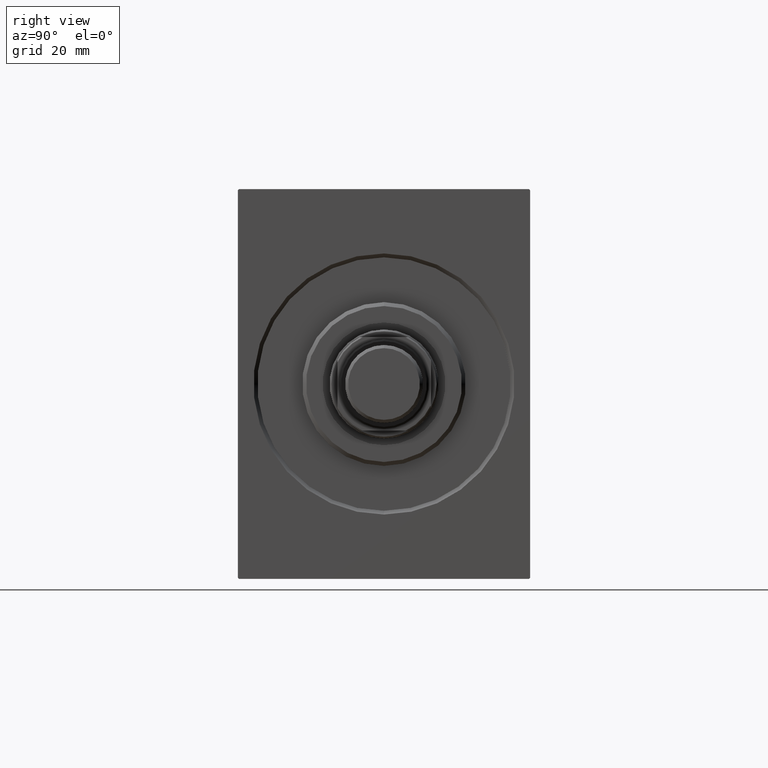
[diagram: clean part render]
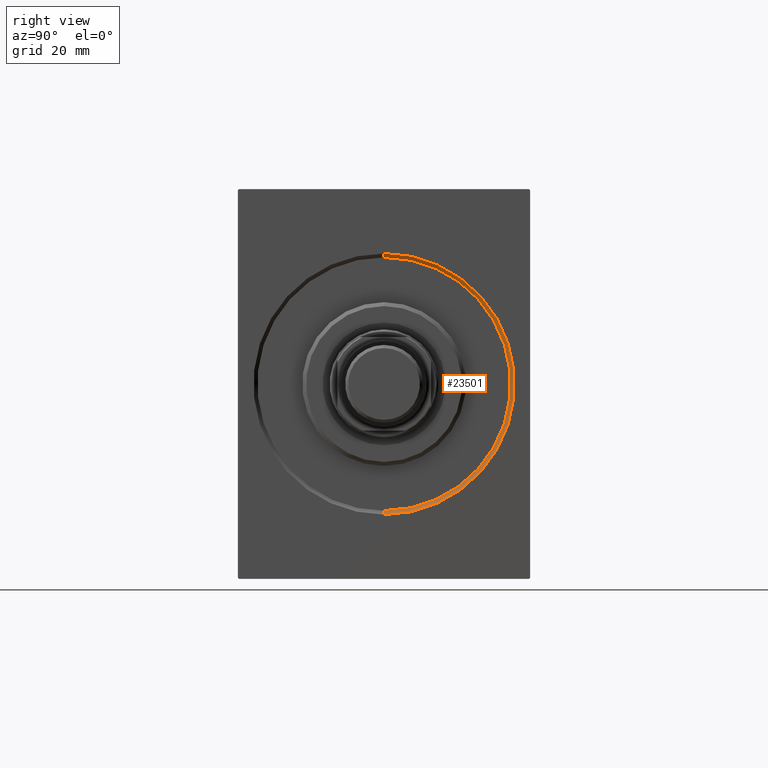
[diagram: same view with one face highlighted and labeled with its STEP entity id]
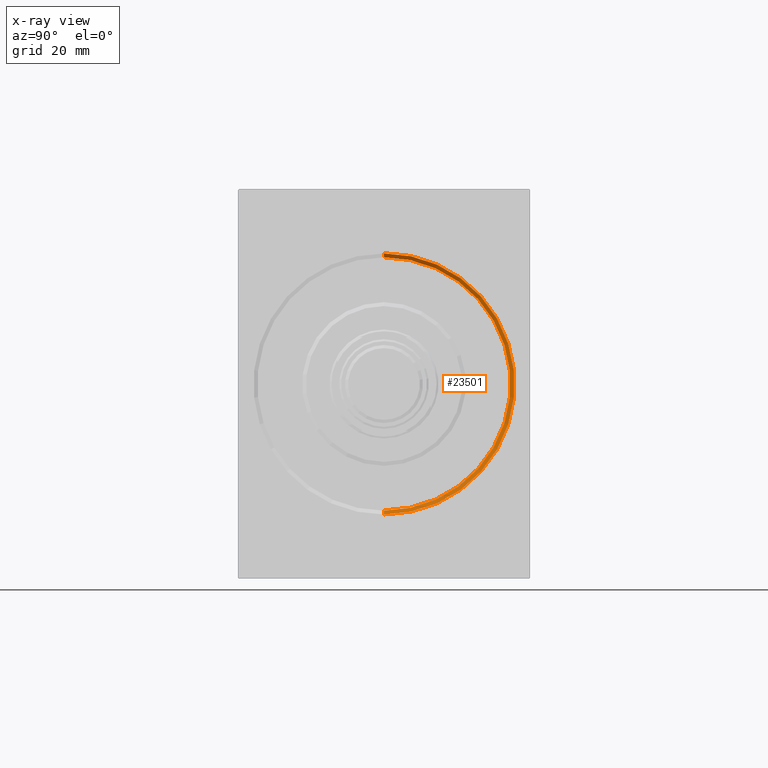
[diagram: x-ray of the same camera — body ghosted, the highlighted face saturated]
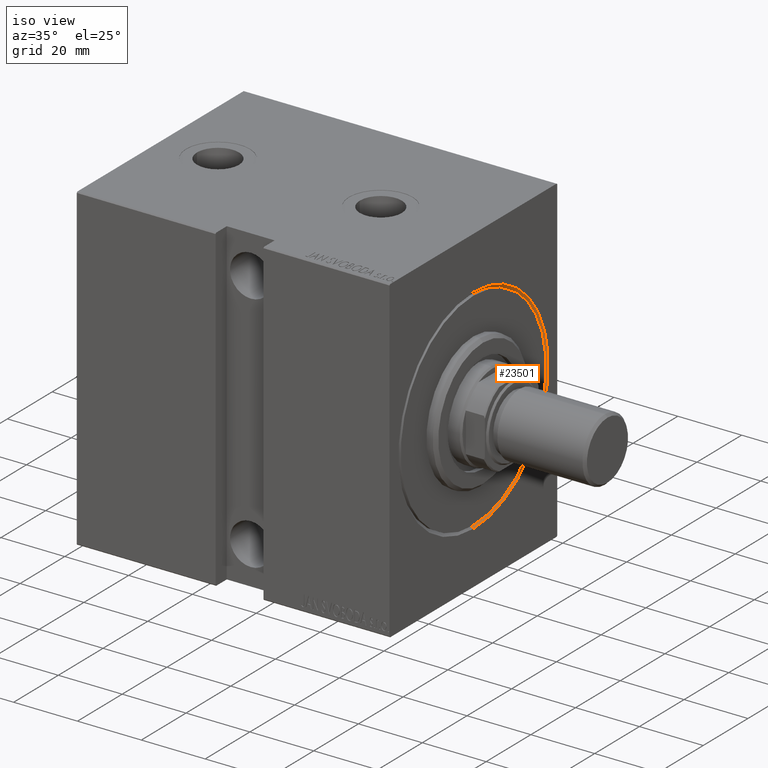
[diagram: same view with one face highlighted and labeled with its STEP entity id]
A machine part, right view. The second image highlights one B-rep face of the part: STEP entity #23501.
The next image is the same camera in x-ray: the body ghosted, the highlighted face saturated — about 0% of this face is hidden behind the body in this view.
A second angle (iso view) of the same face is appended — the face is thin or edge-on in the first view.
In plain terms, the highlighted conical surface has half-angle 45 deg.
Its self-contained STEP definition (entity closure, byte-faithful):
#249 = AXIS2_PLACEMENT_3D ( 'NONE', #25025, #16015, #18875 ) ;
#312 = AXIS2_PLACEMENT_3D ( 'NONE', #15412, #11908, #1348 ) ;
#540 = LINE ( 'NONE', #27336, #24951 ) ;
#628 = EDGE_CURVE ( 'NONE', #30834, #27612, #17602, .T. ) ;
#1348 = DIRECTION ( 'NONE',  ( 0.000000000000000000, 0.000000000000000000, -1.000000000000000000 ) ) ;
#2600 = FACE_OUTER_BOUND ( 'NONE', #20269, .T. ) ;
#2732 = ORIENTED_EDGE ( 'NONE', *, *, #36304, .F. ) ;
#4602 = ORIENTED_EDGE ( 'NONE', *, *, #628, .F. ) ;
#11908 = DIRECTION ( 'NONE',  ( -1.000000000000000000, 0.000000000000000000, 0.000000000000000000 ) ) ;
#12741 = DIRECTION ( 'NONE',  ( 0.000000000000000000, 0.000000000000000000, -1.000000000000000000 ) ) ;
#15412 = CARTESIAN_POINT ( 'NONE',  ( 0.9999999999999870104, 0.000000000000000000, 0.000000000000000000 ) ) ;
#15600 = CARTESIAN_POINT ( 'NONE',  ( 0.000000000000000000, 0.000000000000000000, 0.000000000000000000 ) ) ;
#16015 = DIRECTION ( 'NONE',  ( -1.000000000000000000, 0.000000000000000000, 0.000000000000000000 ) ) ;
#16827 = VERTEX_POINT ( 'NONE', #27355 ) ;
#17289 = CARTESIAN_POINT ( 'NONE',  ( 0.9999999999999870104, 3.980102097228898626E-15, -32.50000000000000000 ) ) ;
#17602 = LINE ( 'NONE', #24626, #26658 ) ;
#18015 = CIRCLE ( 'NONE', #20103, 33.49999999999998579 ) ;
#18875 = DIRECTION ( 'NONE',  ( 0.000000000000000000, 0.000000000000000000, 1.000000000000000000 ) ) ;
#19157 = ORIENTED_EDGE ( 'NONE', *, *, #29407, .T. ) ;
#19326 = DIRECTION ( 'NONE',  ( 1.000000000000000000, 0.000000000000000000, 0.000000000000000000 ) ) ;
#19933 = CARTESIAN_POINT ( 'NONE',  ( 0.000000000000000000, 0.000000000000000000, 33.49999999999998579 ) ) ;
#20103 = AXIS2_PLACEMENT_3D ( 'NONE', #15600, #19326, #12741 ) ;
#20269 = EDGE_LOOP ( 'NONE', ( #39851, #19157, #2732, #4602 ) ) ;
#23501 = ADVANCED_FACE ( 'NONE', ( #2600 ), #29694, .F. ) ;
#24626 = CARTESIAN_POINT ( 'NONE',  ( 0.9999999999999870104, 0.000000000000000000, 32.50000000000000000 ) ) ;
#24951 = VECTOR ( 'NONE', #37656, 1000.000000000000114 ) ;
#25025 = CARTESIAN_POINT ( 'NONE',  ( 0.9999999999999870104, 0.000000000000000000, 0.000000000000000000 ) ) ;
#25741 = EDGE_CURVE ( 'NONE', #28480, #30834, #26258, .T. ) ;
#26258 = CIRCLE ( 'NONE', #312, 32.50000000000000000 ) ;
#26658 = VECTOR ( 'NONE', #41072, 1000.000000000000114 ) ;
#27336 = CARTESIAN_POINT ( 'NONE',  ( 0.9999999999999870104, 3.980102097228898626E-15, -32.50000000000000000 ) ) ;
#27355 = CARTESIAN_POINT ( 'NONE',  ( 0.000000000000000000, 4.102566777143632196E-15, -33.49999999999998579 ) ) ;
#27612 = VERTEX_POINT ( 'NONE', #19933 ) ;
#28480 = VERTEX_POINT ( 'NONE', #17289 ) ;
#29407 = EDGE_CURVE ( 'NONE', #28480, #16827, #540, .T. ) ;
#29694 = CONICAL_SURFACE ( 'NONE', #249, 32.50000000000000000, 0.7853981633974482790 ) ;
#30834 = VERTEX_POINT ( 'NONE', #40613 ) ;
#36304 = EDGE_CURVE ( 'NONE', #27612, #16827, #18015, .T. ) ;
#37656 = DIRECTION ( 'NONE',  ( -0.7071067811865474617, 8.659560562354932858E-17, -0.7071067811865474617 ) ) ;
#39851 = ORIENTED_EDGE ( 'NONE', *, *, #25741, .F. ) ;
#40613 = CARTESIAN_POINT ( 'NONE',  ( 0.9999999999999870104, 0.000000000000000000, 32.50000000000000000 ) ) ;
#41072 = DIRECTION ( 'NONE',  ( -0.7071067811865474617, 0.000000000000000000, 0.7071067811865474617 ) ) ;